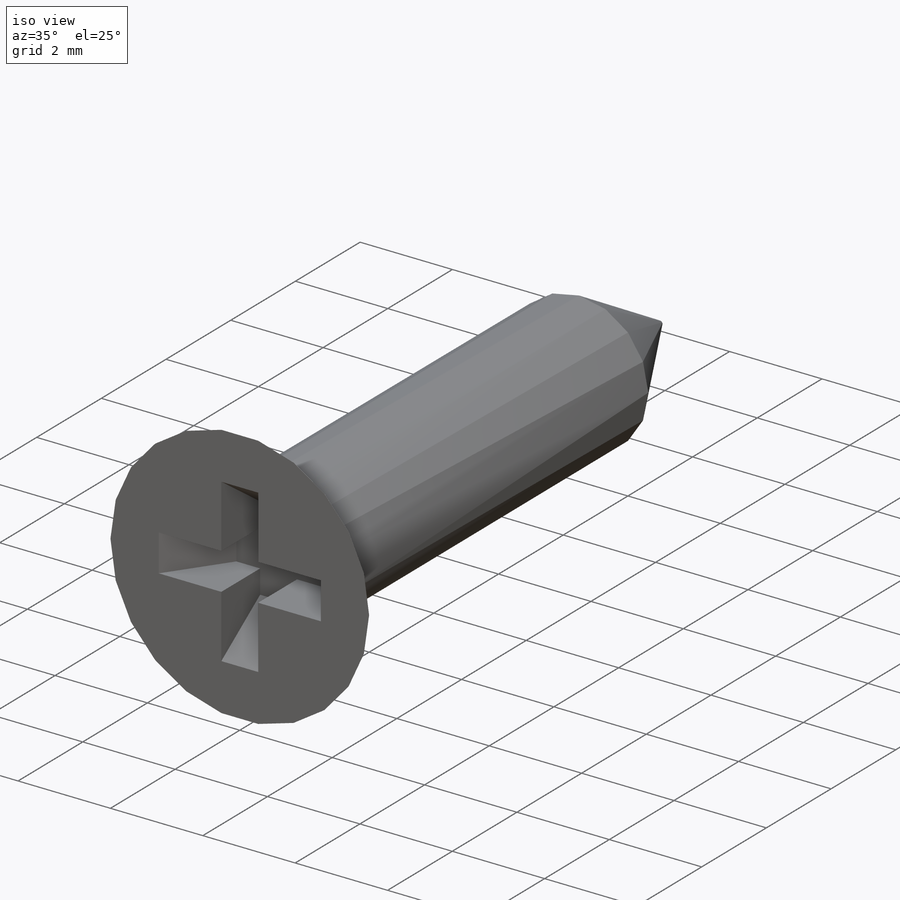
[diagram: iso view]
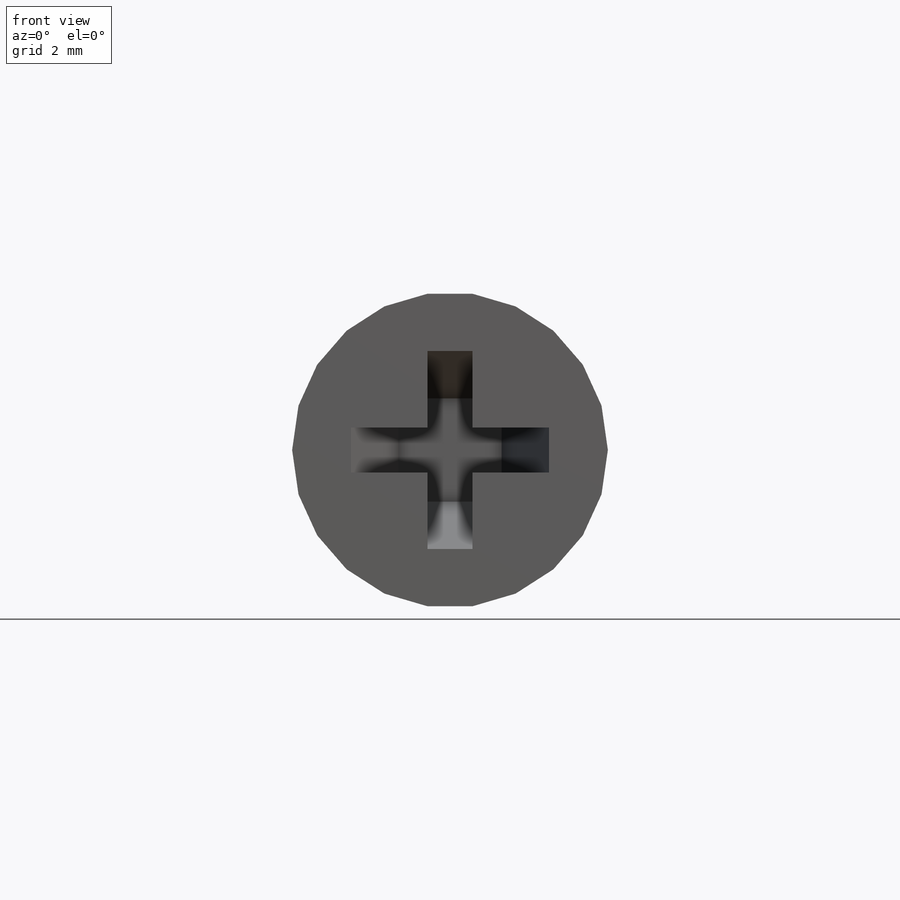
[diagram: front view]
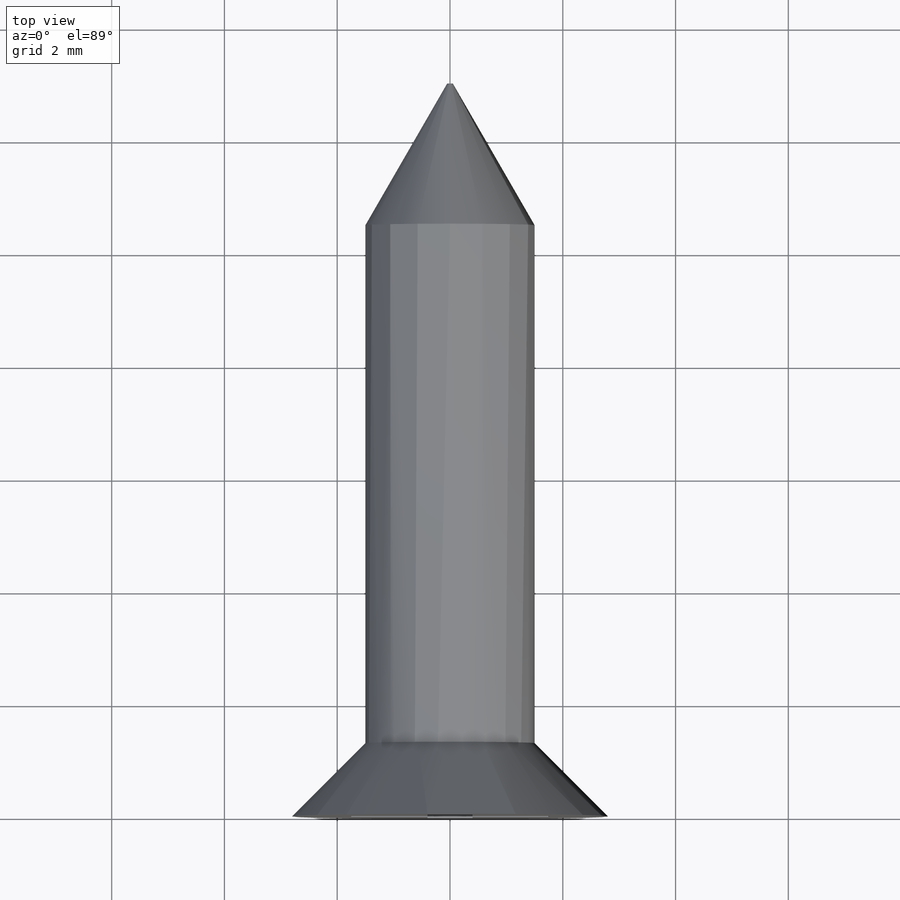
[diagram: top view]
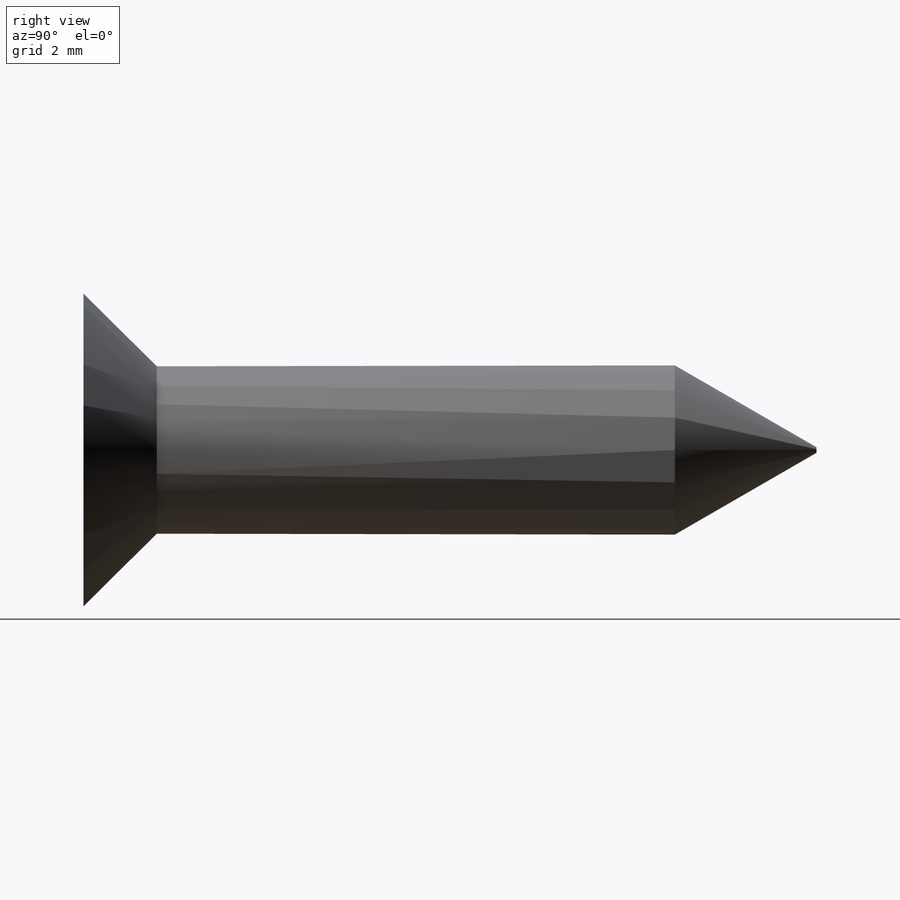
[diagram: right view]
SOLIDWORKS PART (.sldprt)
format: sldprt  version: not decoded by parser v0  size: 175,104 bytes
history: native  units: mm
features: plane x3, sketch x3, material x1, revolve x1, extrude x1, cut_extrude x1, chamfer x1 (+8 scaffold rows collapsed)
feature tree (19):
  scaffold x8  (default folders/planes/origin — collapsed)
  material  "Matériau <non spécifié>"
  plane  "Plan de face"
  plane  "Plan de dessus"
  plane  "Plan de droite"
  sketch  "Esquisse1"  dims[c1.D1=~11.352469mm c2.D1=135.0deg]
  revolve  "Révolution2"  Angle=360deg
  sketch  "Esquisse3"  dims[D1=~1.457329mm]
  extrude  "Extrusion1"  Depth=13mm
  sketch  "Esquisse2"  dims[D1=0.4mm D2=0.4mm]
  cut_extrude  "Enlèv. mat.-Extru.2"  Depth=1.2mm
  chamfer  "Chanfrein1"  Distance=1.45mm Angle=60deg
decode coverage: 7 of 7 modeling features carry decoded parameters
note: ~ marks probable driven/reference dimensions
note: suppression state not decoded; provenance and decode notes live in map.json
